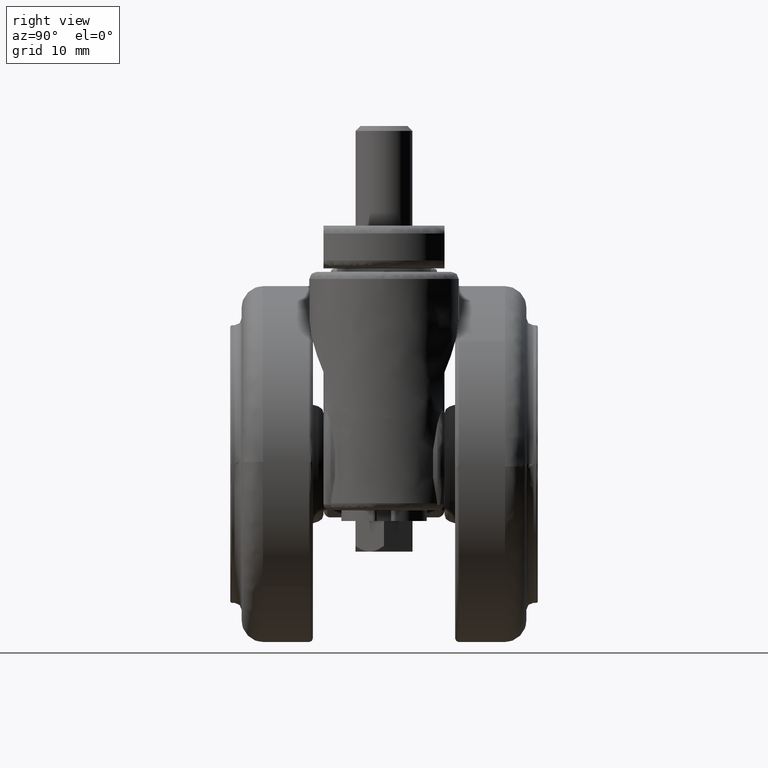
[diagram: clean part render]
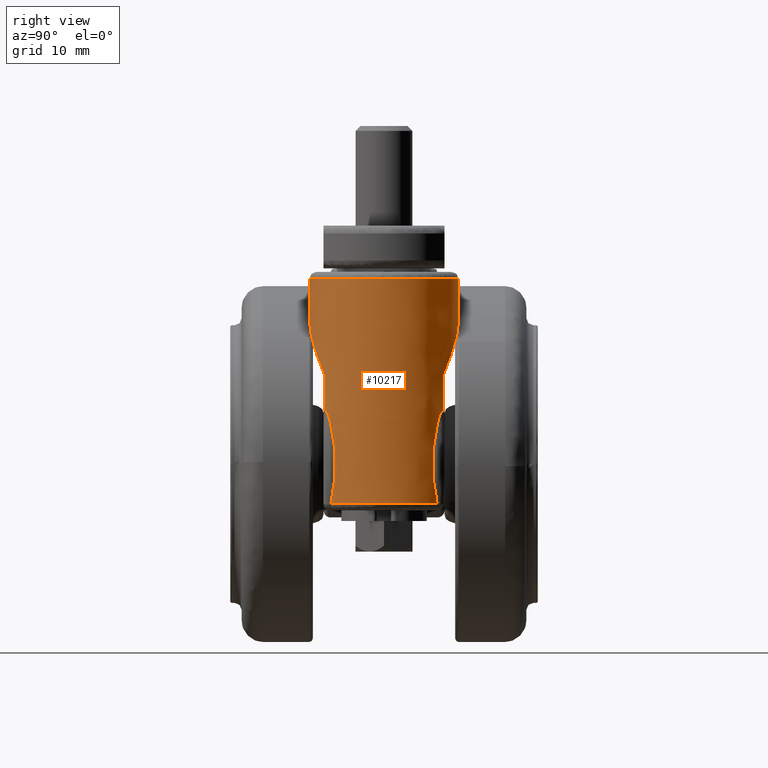
[diagram: same view with one face highlighted and labeled with its STEP entity id]
A machine part, right view. The second image highlights one B-rep face of the part: STEP entity #10217.
In plain terms, the highlighted face is a freeform B-spline surface patch.
Its self-contained STEP definition (entity closure, byte-faithful):
#9335=CARTESIAN_POINT('',(17.015507099511311,-10.499988549026380,26.000000000706240));
#9336=VERTEX_POINT('',#9335);
#9352=CARTESIAN_POINT('',(27.496683987472490,-0.263866002240856,26.000000001106621));
#9353=VERTEX_POINT('',#9352);
#9354=CARTESIAN_POINT('',(27.496683987472494,-0.263866002240856,26.000000001106628));
#9355=CARTESIAN_POINT('',(27.239747568364358,-10.484888693098636,26.000000001172420));
#9356=CARTESIAN_POINT('',(17.015507099511311,-10.499988549026380,26.000000000706240));
#9364=(BOUNDED_CURVE()B_SPLINE_CURVE(2,(#9354,#9355,#9356),.UNSPECIFIED.,.F.,.U.)B_SPLINE_CURVE_WITH_KNOTS((3,3),(0.004420108231623,0.249739004087766),.UNSPECIFIED.)CURVE()GEOMETRIC_REPRESENTATION_ITEM()RATIONAL_B_SPLINE_CURVE((0.989826157678343,0.712580223333112,0.999389086987076))REPRESENTATION_ITEM(''));
#9365=EDGE_CURVE('',#9353,#9336,#9364,.T.);
#9469=CARTESIAN_POINT('',(16.984493095859278,10.499988549314660,26.000000000554770));
#9470=VERTEX_POINT('',#9469);
#9471=CARTESIAN_POINT('',(27.500000000000000,0.0,26.0));
#9472=VERTEX_POINT('',#9471);
#9473=CARTESIAN_POINT('',(16.984493095859275,10.499988549314660,26.000000000554774));
#9474=CARTESIAN_POINT('',(16.992246543701921,10.499999999991196,26.000000000554362));
#9475=CARTESIAN_POINT('',(17.000000000000011,10.499999999991200,26.000000000553960));
#9476=CARTESIAN_POINT('',(27.500000000000007,10.499999999995604,26.000000000003798));
#9477=CARTESIAN_POINT('',(27.500000000000000,0.0,26.0));
#9485=(BOUNDED_CURVE()B_SPLINE_CURVE(2,(#9473,#9474,#9475,#9476,#9477),.UNSPECIFIED.,.F.,.U.)B_SPLINE_CURVE_WITH_KNOTS((3,2,3),(0.749739007374995,0.750000000000000,1.0),.UNSPECIFIED.)CURVE()GEOMETRIC_REPRESENTATION_ITEM()RATIONAL_B_SPLINE_CURVE((0.999389094673451,0.999694228119903,1.0,0.707106781186547,1.0))REPRESENTATION_ITEM(''));
#9486=EDGE_CURVE('',#9470,#9472,#9485,.T.);
#9543=CARTESIAN_POINT('',(27.500000000000000,0.0,26.0));
#9544=CARTESIAN_POINT('',(27.499999999999996,-0.131953837338412,26.000000000553310));
#9545=CARTESIAN_POINT('',(27.496683987472494,-0.263866002240856,26.000000001106628));
#9553=(BOUNDED_CURVE()B_SPLINE_CURVE(2,(#9543,#9544,#9545),.UNSPECIFIED.,.F.,.U.)B_SPLINE_CURVE_WITH_KNOTS((3,3),(0.0,0.004420108231623),.UNSPECIFIED.)CURVE()GEOMETRIC_REPRESENTATION_ITEM()RATIONAL_B_SPLINE_CURVE((1.0,0.994821521090144,0.989826157678343))REPRESENTATION_ITEM(''));
#9554=EDGE_CURVE('',#9472,#9353,#9553,.T.);
#9651=CARTESIAN_POINT('',(24.387496796514451,-7.461560901144560,-5.499999999999890));
#9652=VERTEX_POINT('',#9651);
#9653=CARTESIAN_POINT('',(24.348469228349551,-7.500000000000000,5.670277439077900));
#9654=VERTEX_POINT('',#9653);
#9655=CARTESIAN_POINT('',(24.387496796514451,-7.461560901144560,-5.499999999999890));
#9656=CARTESIAN_POINT('',(24.403752091968101,-7.445466766009448,-5.427920328024533));
#9657=CARTESIAN_POINT('',(24.419692598056631,-7.429579126278039,-5.355747808788632));
#9658=CARTESIAN_POINT('',(24.627006688569381,-7.221666337956465,-4.396951123815219));
#9659=CARTESIAN_POINT('',(24.771551487849059,-7.062128240005354,-3.496199194090705));
#9660=CARTESIAN_POINT('',(24.890589239248040,-6.927473462609774,-2.347735190408638));
#9661=CARTESIAN_POINT('',(24.911298151690289,-6.903772354955889,-2.116914779412534));
#9662=CARTESIAN_POINT('',(24.946383050701659,-6.863359804620328,-1.652900023912015));
#9663=CARTESIAN_POINT('',(24.960769249185709,-6.846637143277598,-1.419486062734963));
#9664=CARTESIAN_POINT('',(24.994117442912611,-6.807734504288262,-0.716903131042090));
#9665=CARTESIAN_POINT('',(25.003039648302281,-6.797160410199884,-0.250915212467338));
#9666=CARTESIAN_POINT('',(24.995149467641131,-6.806439513791240,0.676355752392508));
#9667=CARTESIAN_POINT('',(24.978337476511442,-6.826283759829558,1.137639607809329));
#9668=CARTESIAN_POINT('',(24.919581752118798,-6.894363231967204,2.055727615195446));
#9669=CARTESIAN_POINT('',(24.877638446389099,-6.942582518079329,2.512533185875851));
#9670=CARTESIAN_POINT('',(24.768927091635270,-7.064022365443591,3.421983633517035));
#9671=CARTESIAN_POINT('',(24.702159429825262,-7.137226075434461,3.874630005105938));
#9672=CARTESIAN_POINT('',(24.583388535709311,-7.262611923477000,4.550754360392493));
#9673=CARTESIAN_POINT('',(24.540692563679819,-7.306999035422528,4.775655173830289));
#9674=CARTESIAN_POINT('',(24.471967527285159,-7.377043507701585,5.112330449020499));
#9675=CARTESIAN_POINT('',(24.448257749525869,-7.400989670081084,5.224535722683809));
#9676=CARTESIAN_POINT('',(24.399429998903319,-7.449807206048540,5.448017715832356));
#9677=CARTESIAN_POINT('',(24.374302836859329,-7.474688332807772,5.559346532526237));
#9678=CARTESIAN_POINT('',(24.348469228349551,-7.500000000000000,5.670277439077900));
#9679=B_SPLINE_CURVE_WITH_KNOTS('',3,(#9655,#9656,#9657,#9658,#9659,#9660,#9661,#9662,#9663,#9664,#9665,#9666,#9667,#9668,#9669,#9670,#9671,#9672,#9673,#9674,#9675,#9676,#9677,#9678),.UNSPECIFIED.,.F.,.U.,(4,2,2,2,2,2,2,2,2,2,2,4),(0.872452596039841,0.874999999999997,0.906249999999998,0.914062499999998,0.921874999999998,0.937499999999998,0.953124999999999,0.968749999999999,0.984375000000000,0.992187500000000,0.996093750000000,1.0),.UNSPECIFIED.);
#9680=EDGE_CURVE('',#9652,#9654,#9679,.T.);
#9857=CARTESIAN_POINT('',(16.984482801210980,10.499987289233150,20.341508821311951));
#9858=VERTEX_POINT('',#9857);
#9859=CARTESIAN_POINT('',(16.984493095859278,10.499988549314660,26.000000000554770));
#9860=CARTESIAN_POINT('',(16.984482801210980,10.499987289233150,20.341508821311951));
#9861=QUASI_UNIFORM_CURVE('',1,(#9859,#9860),.UNSPECIFIED.,.F.,.U.);
#9862=EDGE_CURVE('',#9470,#9858,#9861,.T.);
#10002=CARTESIAN_POINT('',(17.015520542896319,-10.500016048938670,20.315573588232699));
#10003=VERTEX_POINT('',#10002);
#10025=CARTESIAN_POINT('',(17.015507099511311,-10.499988549026380,26.000000000706240));
#10026=CARTESIAN_POINT('',(17.015520542896319,-10.500016048938670,20.315573588232699));
#10027=QUASI_UNIFORM_CURVE('',1,(#10025,#10026),.UNSPECIFIED.,.F.,.U.);
#10028=EDGE_CURVE('',#9336,#10003,#10027,.T.);
#10033=CARTESIAN_POINT('',(16.984479495467081,10.499988529228920,26.787500001134291));
#10034=CARTESIAN_POINT('',(27.484468024696003,10.515509033761843,26.787500001134294));
#10035=CARTESIAN_POINT('',(27.499988529228919,0.015520504532918,26.787500001134291));
#10036=CARTESIAN_POINT('',(27.515509033761841,-10.484468024696005,26.787500001134294));
#10037=CARTESIAN_POINT('',(17.015520504532919,-10.499988529228920,26.787500001134291));
#10038=CARTESIAN_POINT('',(16.984479495467081,10.499988529228920,-6.307187500028355));
#10039=CARTESIAN_POINT('',(27.484468024696003,10.515509033761843,-6.307187500028355));
#10040=CARTESIAN_POINT('',(27.499988529228919,0.015520504532918,-6.307187500028356));
#10041=CARTESIAN_POINT('',(27.515509033761841,-10.484468024696005,-6.307187500028357));
#10042=CARTESIAN_POINT('',(17.015520504532919,-10.499988529228920,-6.307187500028356));
#10050=(BOUNDED_SURFACE()B_SPLINE_SURFACE(2,1,((#10033,#10038),(#10034,#10039),(#10035,#10040),(#10036,#10041),(#10037,#10042)),.UNSPECIFIED.,.F.,.F.,.U.)B_SPLINE_SURFACE_WITH_KNOTS((3,2,3),(2,2),(0.0,17.396969619669989,34.793939239339977),(0.0,33.094687501162653),.UNSPECIFIED.)GEOMETRIC_REPRESENTATION_ITEM()RATIONAL_B_SPLINE_SURFACE(((1.0,1.0),(0.707106781186548,0.707106781186548),(1.0,1.0),(0.707106781186548,0.707106781186548),(1.0,1.0)))REPRESENTATION_ITEM('')SURFACE());
#10051=ORIENTED_EDGE('',*,*,#9365,.T.);
#10052=ORIENTED_EDGE('',*,*,#10028,.T.);
#10053=CARTESIAN_POINT('',(23.444736304829000,-8.289473684210529,12.352908143309079));
#10054=VERTEX_POINT('',#10053);
#10055=CARTESIAN_POINT('',(23.444736304829000,-8.289473684210529,12.352908143309079));
#10056=CARTESIAN_POINT('',(23.277214530200808,-8.419714226194309,12.670849777288520));
#10057=CARTESIAN_POINT('',(23.102589176141489,-8.547301292609568,12.986543854290369));
#10058=CARTESIAN_POINT('',(22.740790656253761,-8.794386907228841,13.610157534965939));
#10059=CARTESIAN_POINT('',(22.553510047375362,-8.913989933113532,13.918316291574790));
#10060=CARTESIAN_POINT('',(21.972196276596229,-9.259062077881081,14.832193598202700));
#10061=CARTESIAN_POINT('',(21.558753615294819,-9.470865630095503,15.427338691230050));
#10062=CARTESIAN_POINT('',(20.676969608780311,-9.846793359314598,16.590526336820510));
#10063=CARTESIAN_POINT('',(20.208658232991660,-10.011013799719100,17.158561869159620));
#10064=CARTESIAN_POINT('',(19.460962639609150,-10.210770285890190,17.990551981336591));
#10065=CARTESIAN_POINT('',(19.204171937774579,-10.269559099840199,18.264532973326400));
#10066=CARTESIAN_POINT('',(18.806893945133179,-10.344218214004201,18.670473626141089));
#10067=CARTESIAN_POINT('',(18.672450652425479,-10.366846564726920,18.804948442480690));
#10068=CARTESIAN_POINT('',(18.399376531506800,-10.407224495543741,19.072216507500549));
#10069=CARTESIAN_POINT('',(18.261433040564931,-10.424868988268029,19.204334003228929));
#10070=CARTESIAN_POINT('',(17.761893930814139,-10.478566766403111,19.672546355148249));
#10071=CARTESIAN_POINT('',(17.392947311436231,-10.499488633037020,19.999462339905769));
#10072=CARTESIAN_POINT('',(17.015520542896319,-10.500016048938670,20.315573588232699));
#10073=B_SPLINE_CURVE_WITH_KNOTS('',3,(#10055,#10056,#10057,#10058,#10059,#10060,#10061,#10062,#10063,#10064,#10065,#10066,#10067,#10068,#10069,#10070,#10071,#10072),.UNSPECIFIED.,.F.,.U.,(4,2,2,2,2,2,2,2,4),(0.0,0.062500000000000,0.125000000000000,0.250000000000000,0.375000000000000,0.437500000000000,0.468750000000001,0.500000000000001,0.580921026741452),.UNSPECIFIED.);
#10074=EDGE_CURVE('',#10054,#10003,#10073,.T.);
#10075=ORIENTED_EDGE('',*,*,#10074,.F.);
#10076=CARTESIAN_POINT('',(23.444736304829000,-8.289473684210529,7.495513496631600));
#10077=VERTEX_POINT('',#10076);
#10078=CARTESIAN_POINT('',(23.444736304829000,-8.289473684210529,12.352908143309079));
#10079=CARTESIAN_POINT('',(23.444736304829000,-8.289473684210529,7.495513496631600));
#10080=QUASI_UNIFORM_CURVE('',1,(#10078,#10079),.UNSPECIFIED.,.F.,.U.);
#10081=EDGE_CURVE('',#10054,#10077,#10080,.T.);
#10082=ORIENTED_EDGE('',*,*,#10081,.T.);
#10083=CARTESIAN_POINT('',(23.444736304829000,-8.289473684210529,7.495513496631600));
#10084=CARTESIAN_POINT('',(23.463765574298510,-8.274679183561103,7.498481422901877));
#10085=CARTESIAN_POINT('',(23.482533942176239,-8.259982601449558,7.497245026414168));
#10086=CARTESIAN_POINT('',(23.519662820475538,-8.230708085883338,7.488535788358917));
#10087=CARTESIAN_POINT('',(23.537707023915829,-8.216378104483335,7.481087933042465));
#10088=CARTESIAN_POINT('',(23.572019207566509,-8.188958775190425,7.462474915929199));
#10089=CARTESIAN_POINT('',(23.588551724079089,-8.175659310497121,7.451186797744091));
#10090=CARTESIAN_POINT('',(23.620377338548550,-8.149909378478814,7.426026250290620));
#10091=CARTESIAN_POINT('',(23.635503761657759,-8.137594497501985,7.412296603746186));
#10092=CARTESIAN_POINT('',(23.679208029540199,-8.101826806660402,7.368671651291882));
#10093=CARTESIAN_POINT('',(23.706140356285712,-8.079529196256951,7.336383996798959));
#10094=CARTESIAN_POINT('',(23.757289495272829,-8.036799685723663,7.267891545398920));
#10095=CARTESIAN_POINT('',(23.781278974995850,-8.016554301004906,7.231892612146596));
#10096=CARTESIAN_POINT('',(23.849345225237521,-7.958644330301488,7.121415082541814));
#10097=CARTESIAN_POINT('',(23.889977161431421,-7.923430565623995,7.043979866434986));
#10098=CARTESIAN_POINT('',(23.965679098853350,-7.856962002269619,6.884682574155235));
#10099=CARTESIAN_POINT('',(24.000655634264650,-7.825777111226826,6.802744657327133));
#10100=CARTESIAN_POINT('',(24.066510210340311,-7.766363380071746,6.635590123350355));
#10101=CARTESIAN_POINT('',(24.097381483325499,-7.738135522662357,6.550285534624957));
#10102=CARTESIAN_POINT('',(24.155493284445530,-7.684431087803157,6.378252202096583));
#10103=CARTESIAN_POINT('',(24.182791039462661,-7.658901953655477,6.291360114374327));
#10104=CARTESIAN_POINT('',(24.260410581338260,-7.585611590344097,6.028533623684652));
#10105=CARTESIAN_POINT('',(24.306505623803790,-7.541115767562007,5.850471361680556));
#10106=CARTESIAN_POINT('',(24.348469228349551,-7.500000000000000,5.670277439077900));
#10107=B_SPLINE_CURVE_WITH_KNOTS('',3,(#10083,#10084,#10085,#10086,#10087,#10088,#10089,#10090,#10091,#10092,#10093,#10094,#10095,#10096,#10097,#10098,#10099,#10100,#10101,#10102,#10103,#10104,#10105,#10106),.UNSPECIFIED.,.F.,.U.,(4,2,2,2,2,2,2,2,2,2,2,4),(0.0,0.031250000000000,0.062499999999999,0.093749999999999,0.124999999999998,0.187500000000000,0.250000000000001,0.375000000000001,0.500000000000001,0.625000000000001,0.750000000000000,1.0),.UNSPECIFIED.);
#10108=EDGE_CURVE('',#10077,#9654,#10107,.T.);
#10109=ORIENTED_EDGE('',*,*,#10108,.T.);
#10110=ORIENTED_EDGE('',*,*,#9680,.F.);
#10111=CARTESIAN_POINT('',(24.387496796514402,7.461560901144580,-5.500000000000000));
#10112=VERTEX_POINT('',#10111);
#10113=CARTESIAN_POINT('',(24.387496796514451,-7.461560901144560,-5.499999999999890));
#10114=CARTESIAN_POINT('',(24.879024610537670,-6.975045423905334,-5.499999999999909));
#10115=CARTESIAN_POINT('',(25.599128465107700,-6.105106027857914,-5.499999999999937));
#10116=CARTESIAN_POINT('',(26.498368389066499,-4.574067672394741,-5.499999999999968));
#10117=CARTESIAN_POINT('',(27.121119077843019,-2.999773624282649,-5.499999999999975));
#10118=CARTESIAN_POINT('',(27.470287406262269,-1.255556601650678,-5.500000000000046));
#10119=CARTESIAN_POINT('',(27.535293737814332,0.498628157680757,-5.499999999999933));
#10120=CARTESIAN_POINT('',(27.297081425748139,2.371348815757560,-5.500000000000059));
#10121=CARTESIAN_POINT('',(26.700338391069121,4.165347984281385,-5.499999999999974));
#10122=CARTESIAN_POINT('',(25.733727944731960,5.933901634046193,-5.499999999999926));
#10123=CARTESIAN_POINT('',(24.925127144552690,6.929451291551857,-5.500000000000050));
#10124=CARTESIAN_POINT('',(24.387496796514402,7.461560901144580,-5.500000000000000));
#10125=B_SPLINE_CURVE_WITH_KNOTS('',3,(#10113,#10114,#10115,#10116,#10117,#10118,#10119,#10120,#10121,#10122,#10123,#10124),.UNSPECIFIED.,.F.,.U.,(4,1,1,1,1,1,1,1,1,4),(0.000000050855085,2.074751129044424,3.371491717123995,5.316598457141730,7.132016395034542,8.688057306325216,10.568328063861760,12.772782440772451,14.328868006290829,16.598130696257659),.UNSPECIFIED.);
#10126=EDGE_CURVE('',#9652,#10112,#10125,.T.);
#10127=ORIENTED_EDGE('',*,*,#10126,.T.);
#10128=CARTESIAN_POINT('',(24.348469228349501,7.500000000000000,5.670277439077990));
#10129=VERTEX_POINT('',#10128);
#10130=CARTESIAN_POINT('',(24.348469228349501,7.500000000000000,5.670277439077990));
#10131=CARTESIAN_POINT('',(24.554228786598760,7.298397657379170,4.786734745524663));
#10132=CARTESIAN_POINT('',(24.712681015866590,7.126817609147571,3.889812023481814));
#10133=CARTESIAN_POINT('',(24.877032641953409,6.943277450583095,2.518937076746123));
#10134=CARTESIAN_POINT('',(24.919545415671021,6.894408709353853,2.057720568081906));
#10135=CARTESIAN_POINT('',(24.956703945436789,6.851349684470736,1.475307072297496));
#10136=CARTESIAN_POINT('',(24.963335442297812,6.843637142904301,1.358529905148464));
#10137=CARTESIAN_POINT('',(24.974977543667929,6.830066903331343,1.124373302093902));
#10138=CARTESIAN_POINT('',(24.979985408935232,6.824212402369684,1.006990338502266));
#10139=CARTESIAN_POINT('',(24.992495662551590,6.809565245679868,0.655767179219156));
#10140=CARTESIAN_POINT('',(24.997518554712499,6.803653816064644,0.422242302577105));
#10141=CARTESIAN_POINT('',(25.002810328048579,6.797430211499820,-0.276479658169929));
#10142=CARTESIAN_POINT('',(24.993311426061759,6.808680727843307,-0.739820140822609));
#10143=CARTESIAN_POINT('',(24.948978138480872,6.860386846365886,-1.661756398198366));
#10144=CARTESIAN_POINT('',(24.914144185326052,6.900827610793288,-2.120353547519722));
#10145=CARTESIAN_POINT('',(24.819562309976259,7.007820330359178,-3.033117357597250));
#10146=CARTESIAN_POINT('',(24.759814757857090,7.074354913951855,-3.487285616343593));
#10147=CARTESIAN_POINT('',(24.651591917997688,7.190684906040447,-4.165497761775504));
#10148=CARTESIAN_POINT('',(24.612414935483550,7.232210334095390,-4.391062099973897));
#10149=CARTESIAN_POINT('',(24.527839583151149,7.320202132563370,-4.841226903698076));
#10150=CARTESIAN_POINT('',(24.482405721315299,7.366703668379485,-5.065990480854238));
#10151=CARTESIAN_POINT('',(24.418724709539831,7.430544494688443,-5.360128592948134));
#10152=CARTESIAN_POINT('',(24.403250342514390,7.445963914202250,-5.430144345698306));
#10153=CARTESIAN_POINT('',(24.387496796514402,7.461560901144580,-5.500000000000000));
#10154=B_SPLINE_CURVE_WITH_KNOTS('',3,(#10130,#10131,#10132,#10133,#10134,#10135,#10136,#10137,#10138,#10139,#10140,#10141,#10142,#10143,#10144,#10145,#10146,#10147,#10148,#10149,#10150,#10151,#10152,#10153),.UNSPECIFIED.,.F.,.U.,(4,2,2,2,2,2,2,2,2,2,2,4),(0.0,0.031249999999999,0.046874999999999,0.050781249999998,0.054687499999998,0.062499999999998,0.078124999999998,0.093749999999997,0.109374999999997,0.117187499999996,0.124999999999996,0.127448102739277),.UNSPECIFIED.);
#10155=EDGE_CURVE('',#10129,#10112,#10154,.T.);
#10156=ORIENTED_EDGE('',*,*,#10155,.F.);
#10157=CARTESIAN_POINT('',(23.444736304829000,8.289473684210529,7.495513496631600));
#10158=VERTEX_POINT('',#10157);
#10159=CARTESIAN_POINT('',(24.348469228349501,7.500000000000000,5.670277439077959));
#10160=CARTESIAN_POINT('',(24.306485445117030,7.541135538556471,5.850558010021553));
#10161=CARTESIAN_POINT('',(24.260339695561989,7.585681000064528,6.028829263061692));
#10162=CARTESIAN_POINT('',(24.156602438792600,7.683627415665142,6.379981162693194));
#10163=CARTESIAN_POINT('',(24.099160024349459,7.736913666786192,6.552843020518195));
#10164=CARTESIAN_POINT('',(24.000126486922479,7.826251063040492,6.804024185300602));
#10165=CARTESIAN_POINT('',(23.964934810557899,7.857623981199787,6.886397962104319));
#10166=CARTESIAN_POINT('',(23.888713907298090,7.924531042821726,7.046484906554308));
#10167=CARTESIAN_POINT('',(23.847601565044862,7.960144701152295,7.124548945417283));
#10168=CARTESIAN_POINT('',(23.779510430218249,8.018050014859213,7.234602234181269));
#10169=CARTESIAN_POINT('',(23.755713738193311,8.038123323939717,7.270140030112081));
#10170=CARTESIAN_POINT('',(23.704923070267430,8.080538429156384,7.337867775534539));
#10171=CARTESIAN_POINT('',(23.677814279607109,8.102975588712827,7.370236670928309));
#10172=CARTESIAN_POINT('',(23.619545324548149,8.150646394026273,7.428043775631154));
#10173=CARTESIAN_POINT('',(23.587961554439669,8.176224265298831,7.453965876198960));
#10174=CARTESIAN_POINT('',(23.537140041726090,8.216828478474561,7.481323532582776));
#10175=CARTESIAN_POINT('',(23.519582688638909,8.230771300586087,7.488555666724198));
#10176=CARTESIAN_POINT('',(23.482595256533699,8.259934223498304,7.497229561472278));
#10177=CARTESIAN_POINT('',(23.463642894589618,8.274774562158573,7.498462288991802));
#10178=CARTESIAN_POINT('',(23.444736304829000,8.289473684210529,7.495513496631600));
#10179=B_SPLINE_CURVE_WITH_KNOTS('',3,(#10159,#10160,#10161,#10162,#10163,#10164,#10165,#10166,#10167,#10168,#10169,#10170,#10171,#10172,#10173,#10174,#10175,#10176,#10177,#10178),.UNSPECIFIED.,.F.,.U.,(4,2,2,2,2,2,2,2,2,4),(0.0,0.250000000000000,0.499999999999999,0.625000000000000,0.750000000000000,0.812500000000000,0.875000000000000,0.937500000000000,0.968750000000000,1.0),.UNSPECIFIED.);
#10180=EDGE_CURVE('',#10129,#10158,#10179,.T.);
#10181=ORIENTED_EDGE('',*,*,#10180,.T.);
#10182=CARTESIAN_POINT('',(23.444736304829000,8.289473684210529,12.352908143309101));
#10183=VERTEX_POINT('',#10182);
#10184=CARTESIAN_POINT('',(23.444736304829000,8.289473684210529,7.495513496631600));
#10185=CARTESIAN_POINT('',(23.444736304829000,8.289473684210529,12.352908143309101));
#10186=QUASI_UNIFORM_CURVE('',1,(#10184,#10185),.UNSPECIFIED.,.F.,.U.);
#10187=EDGE_CURVE('',#10158,#10183,#10186,.T.);
#10188=ORIENTED_EDGE('',*,*,#10187,.T.);
#10189=CARTESIAN_POINT('',(16.984482801210980,10.499987289233150,20.341508821311951));
#10190=CARTESIAN_POINT('',(17.074770186077021,10.500119707086879,20.266120990869890));
#10191=CARTESIAN_POINT('',(17.164539378900411,10.499089164581900,20.190147884699240));
#10192=CARTESIAN_POINT('',(17.543614070978130,10.489933685823310,19.864980117467770));
#10193=CARTESIAN_POINT('',(17.826552710876989,10.471099411855830,19.611392952265721));
#10194=CARTESIAN_POINT('',(18.654919803764969,10.383623035229160,18.836548765479730));
#10195=CARTESIAN_POINT('',(19.179964211048190,10.284198312078200,18.301236538863900));
#10196=CARTESIAN_POINT('',(19.929340640348880,10.086412140513140,17.470270183119951));
#10197=CARTESIAN_POINT('',(20.172750002576279,10.012318993165239,17.188608254704651));
#10198=CARTESIAN_POINT('',(20.528477662135479,9.890175139013616,16.759058172853379));
#10199=CARTESIAN_POINT('',(20.645488298753630,9.847624465772132,16.614698163709459));
#10200=CARTESIAN_POINT('',(20.876400652444289,9.759037334955147,16.323611357922509));
#10201=CARTESIAN_POINT('',(20.990339083967271,9.712979758099216,16.176828605499111));
#10202=CARTESIAN_POINT('',(21.549939024819601,9.475472138540823,15.440135752118261));
#10203=CARTESIAN_POINT('',(21.967427480090279,9.261754824491584,14.839450573282550));
#10204=CARTESIAN_POINT('',(22.552159872021988,8.914868396930347,13.920554922638861));
#10205=CARTESIAN_POINT('',(22.740132702701420,8.794830339193254,13.611273147127839));
#10206=CARTESIAN_POINT('',(23.102613381114178,8.547296351645789,12.986518587645980));
#10207=CARTESIAN_POINT('',(23.277178461331282,8.419743203151009,12.670917883873781));
#10208=CARTESIAN_POINT('',(23.444736304829000,8.289473684210529,12.352908143309101));
#10209=B_SPLINE_CURVE_WITH_KNOTS('',3,(#10189,#10190,#10191,#10192,#10193,#10194,#10195,#10196,#10197,#10198,#10199,#10200,#10201,#10202,#10203,#10204,#10205,#10206,#10207,#10208),.UNSPECIFIED.,.F.,.U.,(4,2,2,2,2,2,2,2,2,4),(0.418329547353388,0.437500000000003,0.500000000000003,0.625000000000003,0.687500000000003,0.718750000000003,0.750000000000002,0.875000000000001,0.937500000000001,1.0),.UNSPECIFIED.);
#10210=EDGE_CURVE('',#9858,#10183,#10209,.T.);
#10211=ORIENTED_EDGE('',*,*,#10210,.F.);
#10212=ORIENTED_EDGE('',*,*,#9862,.F.);
#10213=ORIENTED_EDGE('',*,*,#9486,.T.);
#10214=ORIENTED_EDGE('',*,*,#9554,.T.);
#10215=EDGE_LOOP('',(#10051,#10052,#10075,#10082,#10109,#10110,#10127,#10156,#10181,#10188,#10211,#10212,#10213,#10214));
#10216=FACE_OUTER_BOUND('',#10215,.T.);
#10217=ADVANCED_FACE('',(#10216),#10050,.T.);